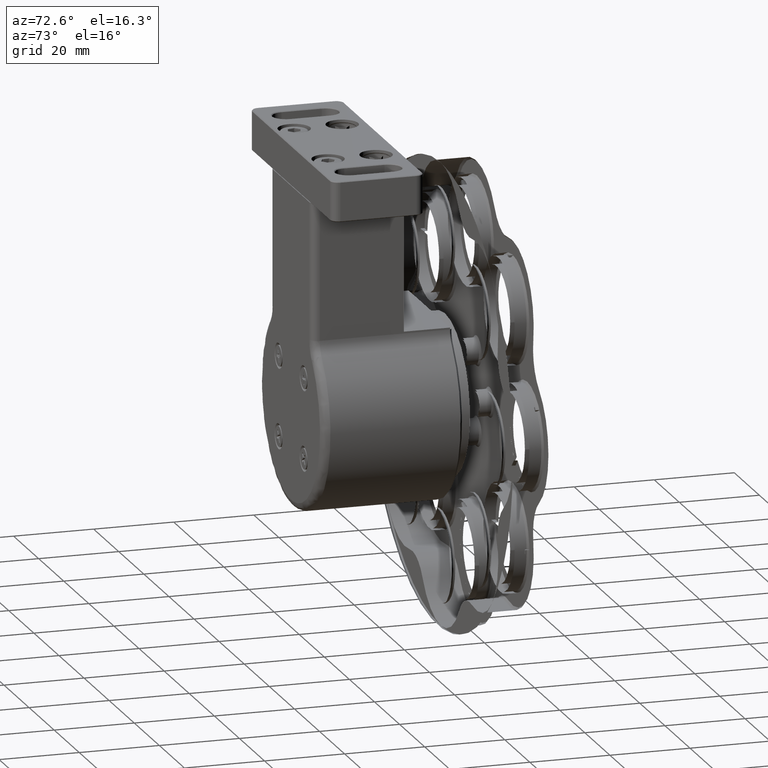
[diagram: clean part render]
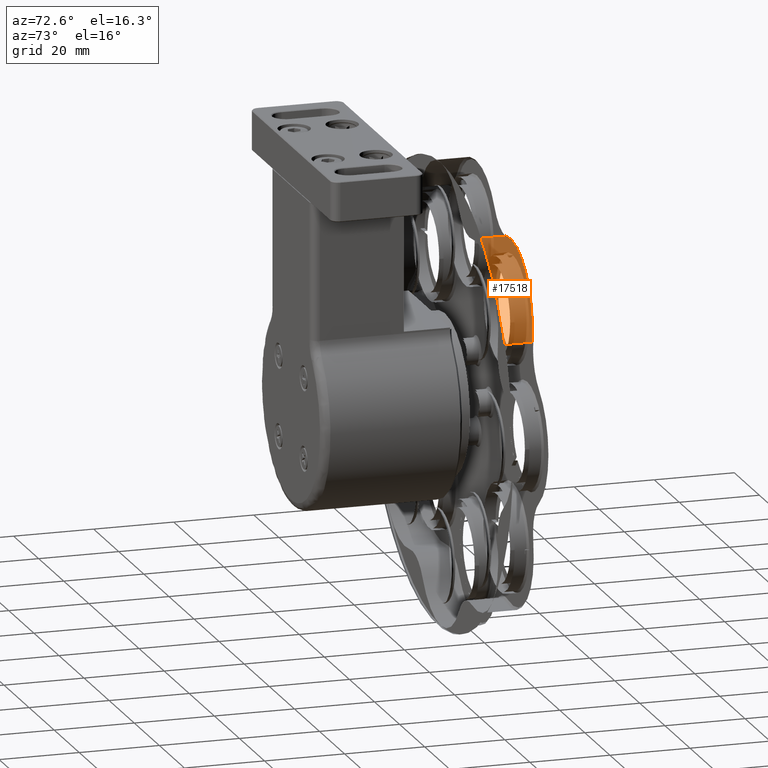
[diagram: same view with one face highlighted and labeled with its STEP entity id]
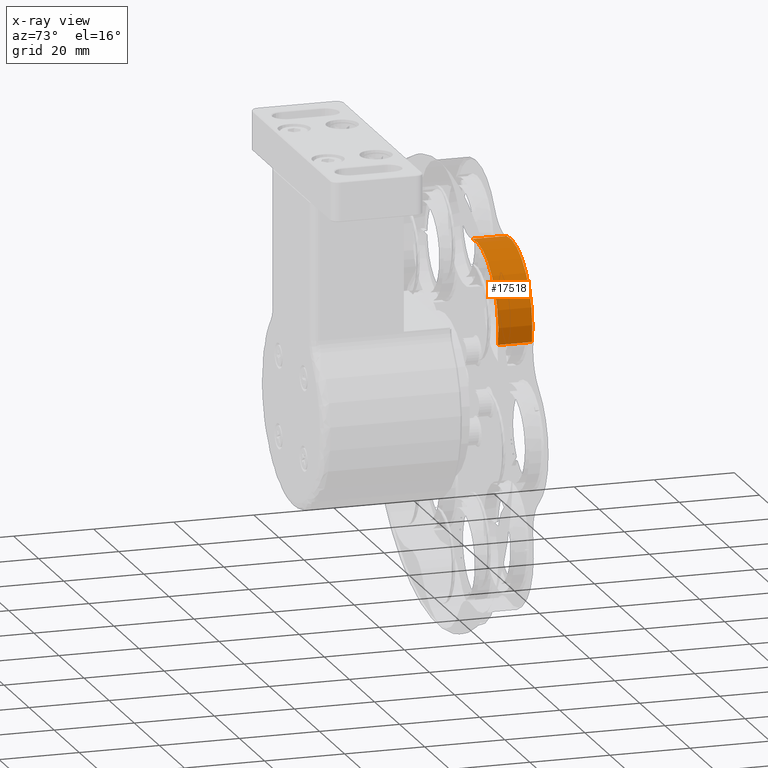
[diagram: x-ray of the same camera — body ghosted, the highlighted face saturated]
A machine part, auxiliary view. The second image highlights one B-rep face of the part: STEP entity #17518.
The next image is the same camera in x-ray: the body ghosted, the highlighted face saturated — about 0% of this face is hidden behind the body in this view.
In plain terms, the highlighted cylindrical surface (partial cylindrical patch) has radius 17.5 mm, axis along (-0, 1, 0).
Its self-contained STEP definition (entity closure, byte-faithful):
#112 = DIRECTION ( 'NONE',  ( 3.488278094132890012E-29, -1.000000000000000000, 0.000000000000000000 ) ) ;
#209 = DIRECTION ( 'NONE',  ( -1.000000000000000000, 0.000000000000000000, -7.930164461608257481E-16 ) ) ;
#513 = CARTESIAN_POINT ( 'NONE',  ( 17.00583820853555395, 40.25879132876270461, 94.84829842325729032 ) ) ;
#678 = CARTESIAN_POINT ( 'NONE',  ( -0.1535350536474439087, 31.75879132876270461, 98.28427124752107602 ) ) ;
#1424 = VERTEX_POINT ( 'NONE', #513 ) ;
#1539 = VERTEX_POINT ( 'NONE', #6659 ) ;
#2141 = CARTESIAN_POINT ( 'NONE',  ( 12.22083361709107940, 31.75879132876270461, 110.6586399183116782 ) ) ;
#2157 = EDGE_CURVE ( 'NONE', #1539, #4700, #2517, .T. ) ;
#2488 = DIRECTION ( 'NONE',  ( -1.000000000000000000, 0.000000000000000000, 1.586032892321651496E-15 ) ) ;
#2517 = CIRCLE ( 'NONE', #3446, 17.50000000000000711 ) ;
#2589 = DIRECTION ( 'NONE',  ( -1.000000000000000000, 0.000000000000000000, 0.000000000000000000 ) ) ;
#3191 = CARTESIAN_POINT ( 'NONE',  ( -0.1535350536474439087, 31.75879132876270461, 98.28427124752107602 ) ) ;
#3446 = AXIS2_PLACEMENT_3D ( 'NONE', #14215, #12877, #2488 ) ;
#3820 = ORIENTED_EDGE ( 'NONE', *, *, #15404, .T. ) ;
#3844 = CYLINDRICAL_SURFACE ( 'NONE', #14635, 17.50000000000000711 ) ;
#4593 = CIRCLE ( 'NONE', #18728, 17.50000000000000711 ) ;
#4700 = VERTEX_POINT ( 'NONE', #2141 ) ;
#4945 = DIRECTION ( 'NONE',  ( -3.488278094132890012E-29, 1.000000000000000000, 0.000000000000000000 ) ) ;
#4987 = ORIENTED_EDGE ( 'NONE', *, *, #15465, .F. ) ;
#5163 = EDGE_CURVE ( 'NONE', #1539, #1424, #6272, .T. ) ;
#5967 = VECTOR ( 'NONE', #4945, 1000.000000000000000 ) ;
#6071 = DIRECTION ( 'NONE',  ( 3.488278094132890012E-29, -1.000000000000000000, -0.000000000000000000 ) ) ;
#6272 = LINE ( 'NONE', #12356, #5967 ) ;
#6486 = CIRCLE ( 'NONE', #8330, 17.50000000000000711 ) ;
#6519 = CARTESIAN_POINT ( 'NONE',  ( -3.589507877983077133, 31.75879132876270461, 115.4436445096896904 ) ) ;
#6659 = CARTESIAN_POINT ( 'NONE',  ( 17.00583820853555039, 31.75879132876270461, 94.84829842325727611 ) ) ;
#6793 = VERTEX_POINT ( 'NONE', #6519 ) ;
#8330 = AXIS2_PLACEMENT_3D ( 'NONE', #3191, #6071, #209 ) ;
#8645 = CARTESIAN_POINT ( 'NONE',  ( -3.589507877983094009, 40.25879132876269750, 115.4436445096896904 ) ) ;
#8830 = CARTESIAN_POINT ( 'NONE',  ( -0.1535350536474439087, 40.25879132876270461, 98.28427124752107602 ) ) ;
#9531 = FACE_OUTER_BOUND ( 'NONE', #14411, .T. ) ;
#9534 = ORIENTED_EDGE ( 'NONE', *, *, #5163, .F. ) ;
#10947 = VERTEX_POINT ( 'NONE', #8645 ) ;
#12312 = ORIENTED_EDGE ( 'NONE', *, *, #2157, .T. ) ;
#12356 = CARTESIAN_POINT ( 'NONE',  ( 17.00583820853555750, 31.75879132876270461, 94.84829842325729032 ) ) ;
#12877 = DIRECTION ( 'NONE',  ( 3.488278094132890012E-29, -1.000000000000000000, -0.000000000000000000 ) ) ;
#12884 = EDGE_CURVE ( 'NONE', #1424, #10947, #4593, .T. ) ;
#13289 = CARTESIAN_POINT ( 'NONE',  ( -3.589507877983094009, 31.75879132876270461, 115.4436445096896904 ) ) ;
#14215 = CARTESIAN_POINT ( 'NONE',  ( -0.1535350536474439087, 31.75879132876270461, 98.28427124752107602 ) ) ;
#14411 = EDGE_LOOP ( 'NONE', ( #4987, #17819, #9534, #12312, #3820 ) ) ;
#14489 = VECTOR ( 'NONE', #112, 1000.000000000000000 ) ;
#14635 = AXIS2_PLACEMENT_3D ( 'NONE', #678, #18181, #15594 ) ;
#15404 = EDGE_CURVE ( 'NONE', #4700, #6793, #6486, .T. ) ;
#15465 = EDGE_CURVE ( 'NONE', #10947, #6793, #17805, .T. ) ;
#15594 = DIRECTION ( 'NONE',  ( -1.000000000000000000, 0.000000000000000000, 0.000000000000000000 ) ) ;
#15775 = DIRECTION ( 'NONE',  ( 3.488278094132890012E-29, -1.000000000000000000, -0.000000000000000000 ) ) ;
#17518 = ADVANCED_FACE ( 'NONE', ( #9531 ), #3844, .F. ) ;
#17805 = LINE ( 'NONE', #13289, #14489 ) ;
#17819 = ORIENTED_EDGE ( 'NONE', *, *, #12884, .F. ) ;
#18181 = DIRECTION ( 'NONE',  ( -3.488278094132890012E-29, 1.000000000000000000, 0.000000000000000000 ) ) ;
#18728 = AXIS2_PLACEMENT_3D ( 'NONE', #8830, #15775, #2589 ) ;